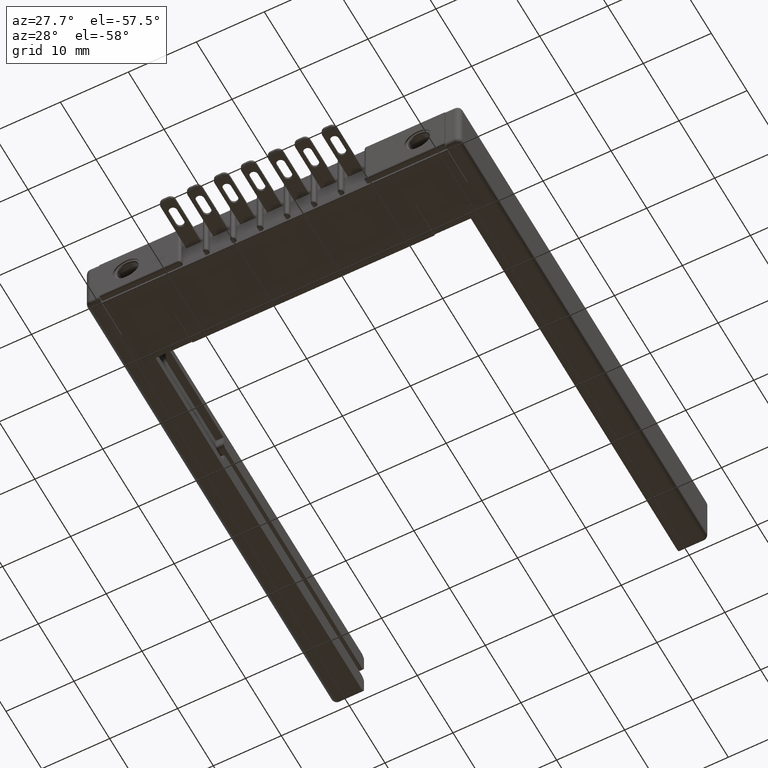
[diagram: clean part render]
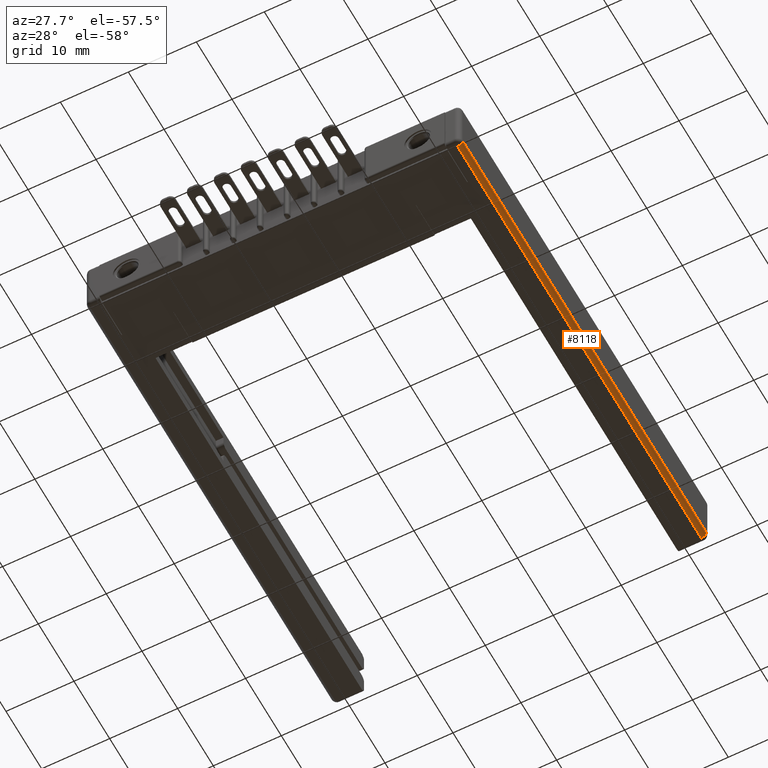
[diagram: same view with one face highlighted and labeled with its STEP entity id]
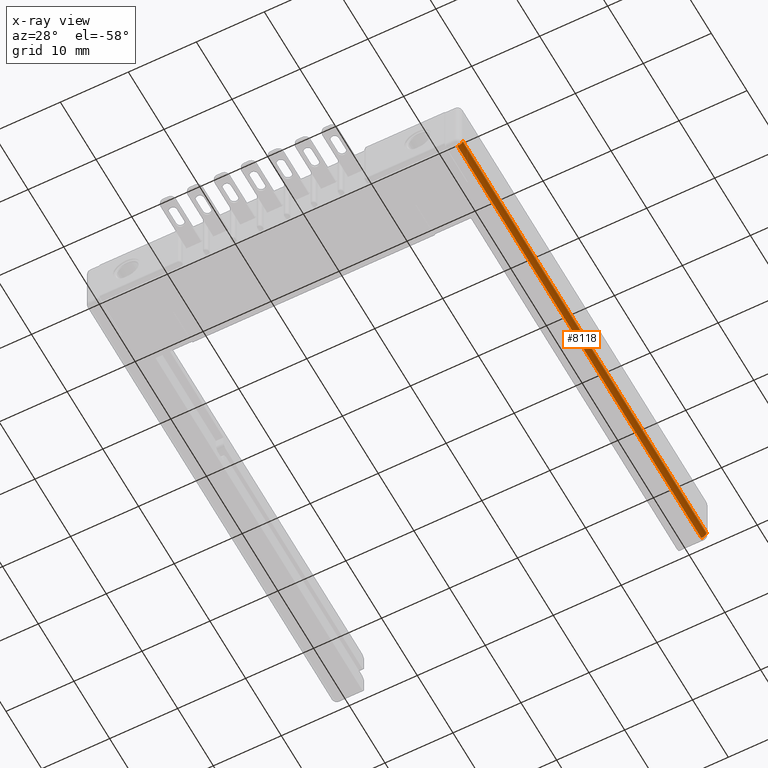
[diagram: x-ray of the same camera — body ghosted, the highlighted face saturated]
A machine part, auxiliary view. The second image highlights one B-rep face of the part: STEP entity #8118.
The next image is the same camera in x-ray: the body ghosted, the highlighted face saturated — about 0% of this face is hidden behind the body in this view.
In plain terms, the highlighted cylindrical surface (edge-blend (fillet) strip) has radius 0.762 mm, axis along (-0, 1, 0).
Its self-contained STEP definition (entity closure, byte-faithful):
#248 = EDGE_CURVE ( 'NONE', #13259, #4473, #12037, .T. ) ;
#261 = CIRCLE ( 'NONE', #8744, 0.02999999999999999900 ) ;
#316 = VECTOR ( 'NONE', #1239, 39.37007874015748100 ) ;
#378 = CARTESIAN_POINT ( 'NONE',  ( 0.02999999999999999900, 2.719999999999999800, -0.02999999999999999900 ) ) ;
#827 = ORIENTED_EDGE ( 'NONE', *, *, #10820, .F. ) ;
#1239 = DIRECTION ( 'NONE',  ( 0.0000000000000000000, -1.000000000000000000, 0.0000000000000000000 ) ) ;
#1289 = CARTESIAN_POINT ( 'NONE',  ( 0.02999999999999999900, 0.0000000000000000000, 0.0000000000000000000 ) ) ;
#2436 = DIRECTION ( 'NONE',  ( 0.0000000000000000000, 0.0000000000000000000, 1.000000000000000000 ) ) ;
#3545 = CYLINDRICAL_SURFACE ( 'NONE', #9243, 0.02999999999999999900 ) ;
#3649 = VERTEX_POINT ( 'NONE', #7676 ) ;
#4086 = EDGE_CURVE ( 'NONE', #11231, #3649, #8409, .T. ) ;
#4142 = ORIENTED_EDGE ( 'NONE', *, *, #5510, .T. ) ;
#4388 = CARTESIAN_POINT ( 'NONE',  ( 0.02999999999999999900, 0.02999999999999998800, -0.02999999999999999900 ) ) ;
#4460 = ORIENTED_EDGE ( 'NONE', *, *, #4086, .F. ) ;
#4473 = VERTEX_POINT ( 'NONE', #10323 ) ;
#4691 = DIRECTION ( 'NONE',  ( 0.0000000000000000000, 0.0000000000000000000, 1.000000000000000000 ) ) ;
#5148 = AXIS2_PLACEMENT_3D ( 'NONE', #4388, #8623, #10790 ) ;
#5399 = VECTOR ( 'NONE', #10024, 39.37007874015748100 ) ;
#5510 = EDGE_CURVE ( 'NONE', #11231, #4473, #261, .T. ) ;
#5525 = FACE_OUTER_BOUND ( 'NONE', #8503, .T. ) ;
#5581 = CARTESIAN_POINT ( 'NONE',  ( 0.02999999999999999900, 0.0000000000000000000, -0.02999999999999999900 ) ) ;
#6687 = DIRECTION ( 'NONE',  ( 0.0000000000000000000, 1.000000000000000000, 0.0000000000000000000 ) ) ;
#7510 = CARTESIAN_POINT ( 'NONE',  ( 0.0000000000000000000, 0.02999999999999998800, -0.02999999999999999900 ) ) ;
#7676 = CARTESIAN_POINT ( 'NONE',  ( 0.02999999999999999900, 0.02999999999999998800, 0.0000000000000000000 ) ) ;
#8118 = ADVANCED_FACE ( 'NONE', ( #5525 ), #3545, .T. ) ;
#8168 = CARTESIAN_POINT ( 'NONE',  ( 0.02999999999999999900, 2.719999999999999800, 0.0000000000000000000 ) ) ;
#8409 = LINE ( 'NONE', #1289, #316 ) ;
#8503 = EDGE_LOOP ( 'NONE', ( #4142, #12620, #827, #4460 ) ) ;
#8623 = DIRECTION ( 'NONE',  ( 0.0000000000000000000, -1.000000000000000000, 0.0000000000000000000 ) ) ;
#8744 = AXIS2_PLACEMENT_3D ( 'NONE', #378, #13276, #4691 ) ;
#9243 = AXIS2_PLACEMENT_3D ( 'NONE', #5581, #6687, #2436 ) ;
#10024 = DIRECTION ( 'NONE',  ( -0.0000000000000000000, 1.000000000000000000, -0.0000000000000000000 ) ) ;
#10323 = CARTESIAN_POINT ( 'NONE',  ( 0.0000000000000000000, 2.719999999999999800, -0.02999999999999999900 ) ) ;
#10790 = DIRECTION ( 'NONE',  ( 0.0000000000000000000, 0.0000000000000000000, -1.000000000000000000 ) ) ;
#10820 = EDGE_CURVE ( 'NONE', #3649, #13259, #13293, .T. ) ;
#11231 = VERTEX_POINT ( 'NONE', #8168 ) ;
#12037 = LINE ( 'NONE', #12186, #5399 ) ;
#12186 = CARTESIAN_POINT ( 'NONE',  ( 0.0000000000000000000, 2.750000000000000000, -0.02999999999999999900 ) ) ;
#12620 = ORIENTED_EDGE ( 'NONE', *, *, #248, .F. ) ;
#13259 = VERTEX_POINT ( 'NONE', #7510 ) ;
#13276 = DIRECTION ( 'NONE',  ( -0.0000000000000000000, -1.000000000000000000, 0.0000000000000000000 ) ) ;
#13293 = CIRCLE ( 'NONE', #5148, 0.02999999999999999900 ) ;